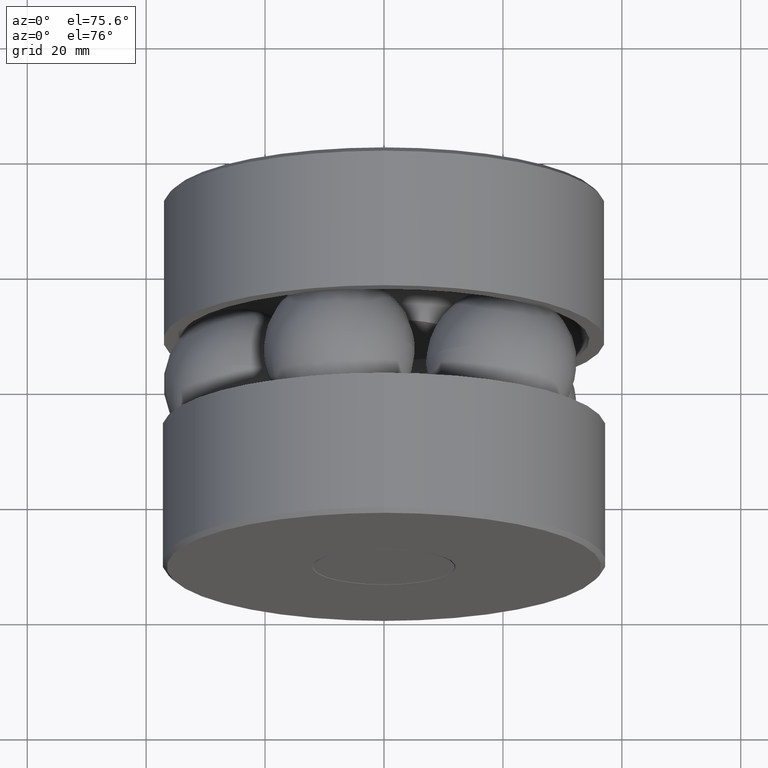
[diagram: clean part render]
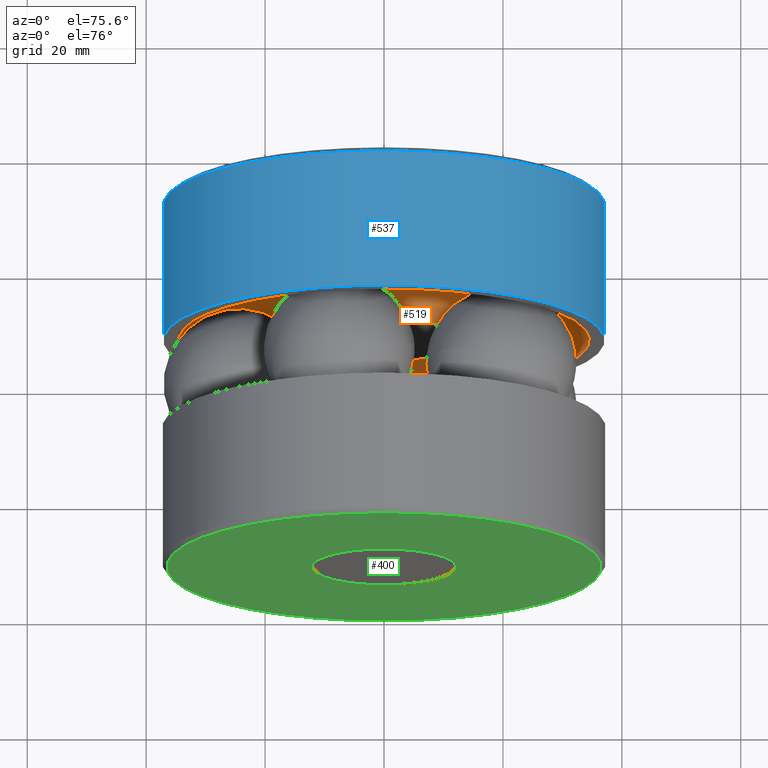
[diagram: same view with three faces highlighted in distinct colors, each labeled with its STEP entity id]
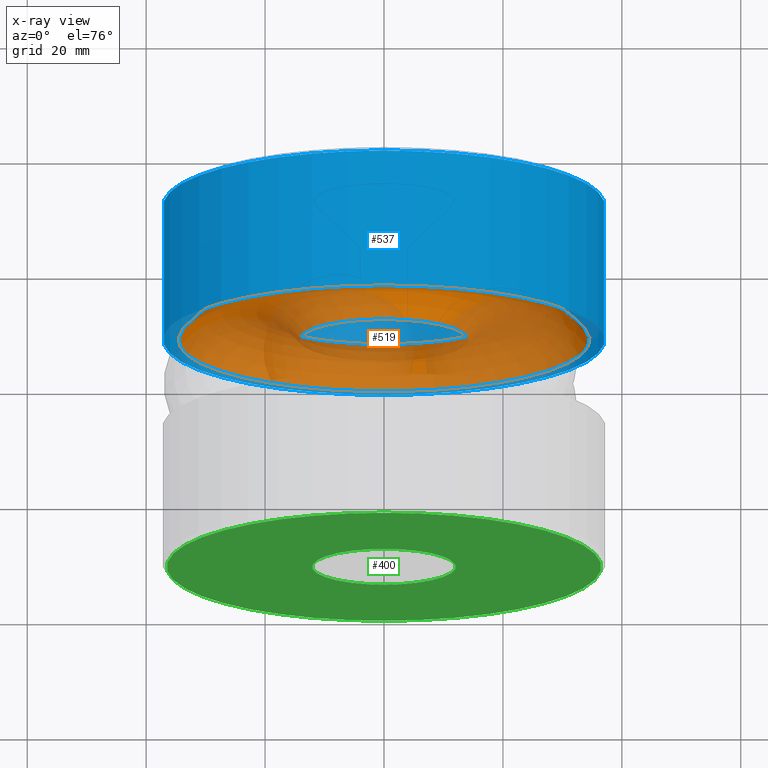
[diagram: x-ray of the same camera — body ghosted, the three highlighted faces saturated]
A machine part, auxiliary view with three faces highlighted in distinct colors.
The next image is the same camera in x-ray (body ghosted, the three faces saturated) — at least one of them is partly hidden behind the body in this view.
Their STEP definitions:

[orange] entity #519 — the highlighted toroidal blend (fillet) surface has major radius 24.384 mm and minor (blend) radius 12.7 mm.
#49 = CIRCLE ( 'NONE', #532, 0.5600000000000006100 ) ;
#63 = CARTESIAN_POINT ( 'NONE',  ( 0.0000000000000000000, 1.550000000000000000, 0.0000000000000000000 ) ) ;
#72 = CARTESIAN_POINT ( 'NONE',  ( 0.0000000000000000000, 1.250000000000000000, 0.0000000000000000000 ) ) ;
#97 = DIRECTION ( 'NONE',  ( 0.0000000000000000000, 0.0000000000000000000, 1.000000000000000000 ) ) ;
#112 = DIRECTION ( 'NONE',  ( 0.0000000000000000000, 0.0000000000000000000, 1.000000000000000000 ) ) ;
#118 = ORIENTED_EDGE ( 'NONE', *, *, #486, .F. ) ;
#128 = CARTESIAN_POINT ( 'NONE',  ( 0.0000000000000000000, 1.550000000000000000, 0.5600000000000006100 ) ) ;
#141 = CARTESIAN_POINT ( 'NONE',  ( 0.0000000000000000000, 1.550000000000000000, 0.0000000000000000000 ) ) ;
#249 = CARTESIAN_POINT ( 'NONE',  ( 0.0000000000000000000, 1.550000000000000000, 1.359999999999999900 ) ) ;
#275 = FACE_OUTER_BOUND ( 'NONE', #393, .T. ) ;
#277 = DIRECTION ( 'NONE',  ( -0.0000000000000000000, 1.000000000000000000, -0.0000000000000000000 ) ) ;
#301 = TOROIDAL_SURFACE ( 'NONE', #507, 0.9600000000000003000, 0.4999999999999997800 ) ;
#306 = AXIS2_PLACEMENT_3D ( 'NONE', #141, #310, #541 ) ;
#310 = DIRECTION ( 'NONE',  ( -0.0000000000000000000, 1.000000000000000000, -0.0000000000000000000 ) ) ;
#370 = EDGE_CURVE ( 'NONE', #443, #443, #49, .T. ) ;
#393 = EDGE_LOOP ( 'NONE', ( #118 ) ) ;
#403 = CIRCLE ( 'NONE', #306, 1.359999999999999900 ) ;
#427 = EDGE_LOOP ( 'NONE', ( #505 ) ) ;
#432 = VERTEX_POINT ( 'NONE', #249 ) ;
#443 = VERTEX_POINT ( 'NONE', #128 ) ;
#454 = DIRECTION ( 'NONE',  ( -0.0000000000000000000, 1.000000000000000000, -0.0000000000000000000 ) ) ;
#486 = EDGE_CURVE ( 'NONE', #432, #432, #403, .T. ) ;
#505 = ORIENTED_EDGE ( 'NONE', *, *, #370, .T. ) ;
#507 = AXIS2_PLACEMENT_3D ( 'NONE', #72, #454, #97 ) ;
#512 = FACE_OUTER_BOUND ( 'NONE', #427, .T. ) ;
#519 = ADVANCED_FACE ( 'NONE', ( #512, #275 ), #301, .F. ) ;
#532 = AXIS2_PLACEMENT_3D ( 'NONE', #63, #277, #112 ) ;
#541 = DIRECTION ( 'NONE',  ( 0.0000000000000000000, 0.0000000000000000000, 1.000000000000000000 ) ) ;

[blue] entity #537 — the highlighted cylindrical surface (bore or boss wall) has radius 37.1348 mm, axis along (-0, 1, -0).
#11 = AXIS2_PLACEMENT_3D ( 'NONE', #281, #354, #238 ) ;
#54 = FACE_OUTER_BOUND ( 'NONE', #168, .T. ) ;
#77 = CARTESIAN_POINT ( 'NONE',  ( 0.0000000000000000000, 2.469999999999999800, 0.0000000000000000000 ) ) ;
#82 = EDGE_LOOP ( 'NONE', ( #378 ) ) ;
#107 = VERTEX_POINT ( 'NONE', #517 ) ;
#138 = CIRCLE ( 'NONE', #287, 1.462000000000000200 ) ;
#168 = EDGE_LOOP ( 'NONE', ( #355 ) ) ;
#184 = CIRCLE ( 'NONE', #246, 1.462000000000000200 ) ;
#204 = EDGE_CURVE ( 'NONE', #347, #347, #138, .T. ) ;
#219 = CARTESIAN_POINT ( 'NONE',  ( 0.0000000000000000000, 1.550000000000000000, 0.0000000000000000000 ) ) ;
#238 = DIRECTION ( 'NONE',  ( 0.0000000000000000000, 0.0000000000000000000, 1.000000000000000000 ) ) ;
#246 = AXIS2_PLACEMENT_3D ( 'NONE', #77, #337, #257 ) ;
#257 = DIRECTION ( 'NONE',  ( 0.0000000000000000000, 0.0000000000000000000, 1.000000000000000000 ) ) ;
#264 = CYLINDRICAL_SURFACE ( 'NONE', #11, 1.462000000000000200 ) ;
#281 = CARTESIAN_POINT ( 'NONE',  ( 0.0000000000000000000, 0.0000000000000000000, 0.0000000000000000000 ) ) ;
#287 = AXIS2_PLACEMENT_3D ( 'NONE', #219, #461, #502 ) ;
#337 = DIRECTION ( 'NONE',  ( -0.0000000000000000000, 1.000000000000000000, -0.0000000000000000000 ) ) ;
#347 = VERTEX_POINT ( 'NONE', #349 ) ;
#349 = CARTESIAN_POINT ( 'NONE',  ( 0.0000000000000000000, 1.550000000000000000, 1.462000000000000200 ) ) ;
#354 = DIRECTION ( 'NONE',  ( -0.0000000000000000000, 1.000000000000000000, -0.0000000000000000000 ) ) ;
#355 = ORIENTED_EDGE ( 'NONE', *, *, #429, .F. ) ;
#378 = ORIENTED_EDGE ( 'NONE', *, *, #204, .T. ) ;
#395 = FACE_OUTER_BOUND ( 'NONE', #82, .T. ) ;
#429 = EDGE_CURVE ( 'NONE', #107, #107, #184, .T. ) ;
#461 = DIRECTION ( 'NONE',  ( -0.0000000000000000000, 1.000000000000000000, -0.0000000000000000000 ) ) ;
#502 = DIRECTION ( 'NONE',  ( 0.0000000000000000000, 0.0000000000000000000, 1.000000000000000000 ) ) ;
#517 = CARTESIAN_POINT ( 'NONE',  ( 0.0000000000000000000, 2.469999999999999800, 1.462000000000000200 ) ) ;
#537 = ADVANCED_FACE ( 'NONE', ( #395, #54 ), #264, .T. ) ;

[green] entity #400 — the highlighted planar face has unit normal (0, -1, 0).
#1 = EDGE_LOOP ( 'NONE', ( #402 ) ) ;
#19 = DIRECTION ( 'NONE',  ( 0.0000000000000000000, -1.000000000000000000, 0.0000000000000000000 ) ) ;
#29 = CARTESIAN_POINT ( 'NONE',  ( 0.0000000000000000000, -3.295805410512742700E-018, 0.0000000000000000000 ) ) ;
#64 = CIRCLE ( 'NONE', #418, 0.4755710678118616500 ) ;
#67 = DIRECTION ( 'NONE',  ( 0.0000000000000000000, 0.0000000000000000000, 1.000000000000000000 ) ) ;
#71 = AXIS2_PLACEMENT_3D ( 'NONE', #453, #169, #67 ) ;
#88 = CARTESIAN_POINT ( 'NONE',  ( -0.4755710678118616500, -1.091043786907128900E-016, 0.0000000000000000000 ) ) ;
#98 = EDGE_LOOP ( 'NONE', ( #153 ) ) ;
#103 = CARTESIAN_POINT ( 'NONE',  ( 0.0000000000000000000, -2.149129519709130200E-016, 1.439000000000000100 ) ) ;
#139 = VERTEX_POINT ( 'NONE', #103 ) ;
#143 = EDGE_CURVE ( 'NONE', #139, #139, #266, .T. ) ;
#153 = ORIENTED_EDGE ( 'NONE', *, *, #515, .T. ) ;
#169 = DIRECTION ( 'NONE',  ( -0.0000000000000000000, 1.000000000000000000, -0.0000000000000000000 ) ) ;
#178 = DIRECTION ( 'NONE',  ( 0.0000000000000000000, 0.0000000000000000000, 1.000000000000000000 ) ) ;
#214 = CARTESIAN_POINT ( 'NONE',  ( 0.0000000000000000000, -3.295805410512742700E-018, 0.4755710678118616500 ) ) ;
#216 = VERTEX_POINT ( 'NONE', #214 ) ;
#217 = DIRECTION ( 'NONE',  ( 0.0000000000000000000, -0.0000000000000000000, -1.000000000000000000 ) ) ;
#225 = AXIS2_PLACEMENT_3D ( 'NONE', #88, #19, #217 ) ;
#266 = CIRCLE ( 'NONE', #71, 1.439000000000000100 ) ;
#308 = DIRECTION ( 'NONE',  ( -0.0000000000000000000, 1.000000000000000000, -0.0000000000000000000 ) ) ;
#344 = FACE_OUTER_BOUND ( 'NONE', #1, .T. ) ;
#400 = ADVANCED_FACE ( 'NONE', ( #494, #344 ), #521, .T. ) ;
#402 = ORIENTED_EDGE ( 'NONE', *, *, #143, .F. ) ;
#418 = AXIS2_PLACEMENT_3D ( 'NONE', #29, #308, #178 ) ;
#453 = CARTESIAN_POINT ( 'NONE',  ( 0.0000000000000000000, -2.149129519709130200E-016, 0.0000000000000000000 ) ) ;
#494 = FACE_BOUND ( 'NONE', #98, .T. ) ;
#515 = EDGE_CURVE ( 'NONE', #216, #216, #64, .T. ) ;
#521 = PLANE ( 'NONE',  #225 ) ;